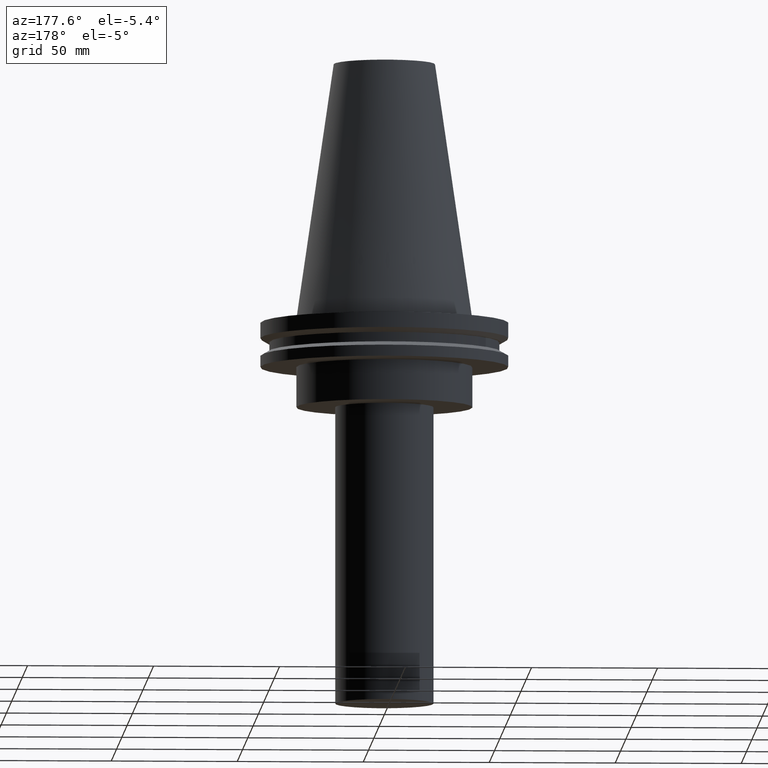
[diagram: clean part render]
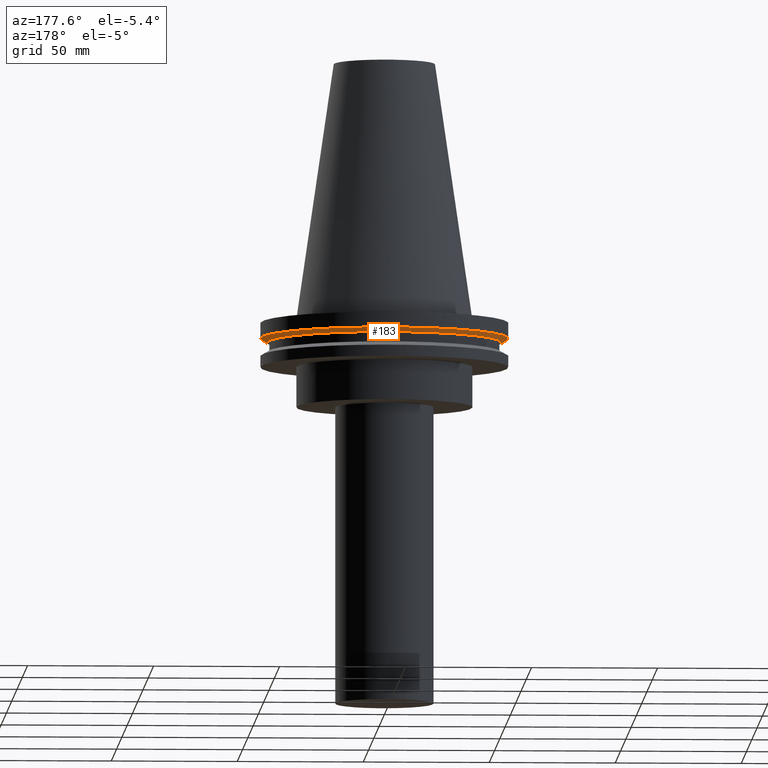
[diagram: same view with one face highlighted and labeled with its STEP entity id]
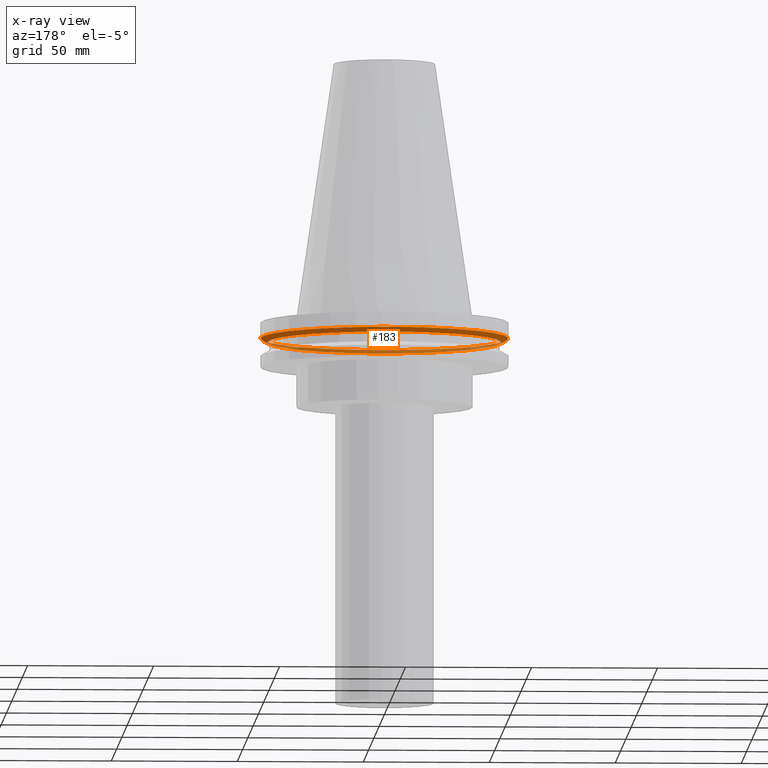
[diagram: x-ray of the same camera — body ghosted, the highlighted face saturated]
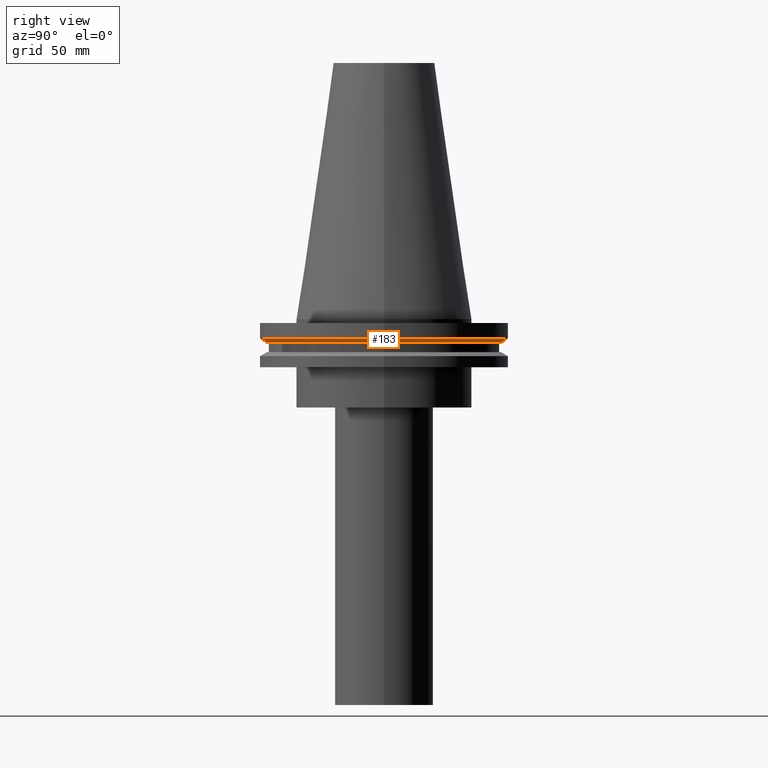
[diagram: same view with one face highlighted and labeled with its STEP entity id]
A machine part, auxiliary view. The second image highlights one B-rep face of the part: STEP entity #183.
The next image is the same camera in x-ray: the body ghosted, the highlighted face saturated — about 36% of this face is hidden behind the body in this view.
A second angle (right view) of the same face is appended — the face is thin or edge-on in the first view.
In plain terms, the highlighted conical surface has half-angle 60 deg.
Its self-contained STEP definition (entity closure, byte-faithful):
#54 = CARTESIAN_POINT ( 'NONE',  ( 46.43919780457007818, 0.000000000000000000, -9.204999999999991189 ) ) ;
#56 = CONICAL_SURFACE ( 'NONE', #159, 46.43919780457007818, 1.047197551196575205 ) ;
#76 = ORIENTED_EDGE ( 'NONE', *, *, #148, .F. ) ;
#106 = DIRECTION ( 'NONE',  ( -0.000000000000000000, -0.000000000000000000, 1.000000000000000000 ) ) ;
#108 = EDGE_LOOP ( 'NONE', ( #301 ) ) ;
#114 = EDGE_LOOP ( 'NONE', ( #76 ) ) ;
#136 = CARTESIAN_POINT ( 'NONE',  ( 0.000000000000000000, 0.000000000000000000, -9.204999999999991189 ) ) ;
#141 = AXIS2_PLACEMENT_3D ( 'NONE', #193, #336, #306 ) ;
#148 = EDGE_CURVE ( 'NONE', #325, #325, #327, .T. ) ;
#159 = AXIS2_PLACEMENT_3D ( 'NONE', #292, #106, #283 ) ;
#164 = FACE_OUTER_BOUND ( 'NONE', #114, .T. ) ;
#183 = ADVANCED_FACE ( 'NONE', ( #164, #381 ), #56, .T. ) ;
#193 = CARTESIAN_POINT ( 'NONE',  ( 0.000000000000000000, 0.000000000000000000, -7.602389855251287187 ) ) ;
#196 = EDGE_CURVE ( 'NONE', #368, #368, #341, .T. ) ;
#229 = AXIS2_PLACEMENT_3D ( 'NONE', #136, #268, #375 ) ;
#268 = DIRECTION ( 'NONE',  ( -0.000000000000000000, -0.000000000000000000, 1.000000000000000000 ) ) ;
#283 = DIRECTION ( 'NONE',  ( 1.000000000000000000, 0.000000000000000000, 0.000000000000000000 ) ) ;
#292 = CARTESIAN_POINT ( 'NONE',  ( 0.000000000000000000, 0.000000000000000000, -9.204999999999991189 ) ) ;
#301 = ORIENTED_EDGE ( 'NONE', *, *, #196, .T. ) ;
#306 = DIRECTION ( 'NONE',  ( 1.000000000000000000, 0.000000000000000000, 0.000000000000000000 ) ) ;
#325 = VERTEX_POINT ( 'NONE', #390 ) ;
#327 = CIRCLE ( 'NONE', #141, 49.21500000000000341 ) ;
#336 = DIRECTION ( 'NONE',  ( -0.000000000000000000, -0.000000000000000000, 1.000000000000000000 ) ) ;
#341 = CIRCLE ( 'NONE', #229, 46.43919780457007818 ) ;
#368 = VERTEX_POINT ( 'NONE', #54 ) ;
#375 = DIRECTION ( 'NONE',  ( 1.000000000000000000, 0.000000000000000000, 0.000000000000000000 ) ) ;
#381 = FACE_BOUND ( 'NONE', #108, .T. ) ;
#390 = CARTESIAN_POINT ( 'NONE',  ( 49.21500000000000341, 0.000000000000000000, -7.602389855251287187 ) ) ;